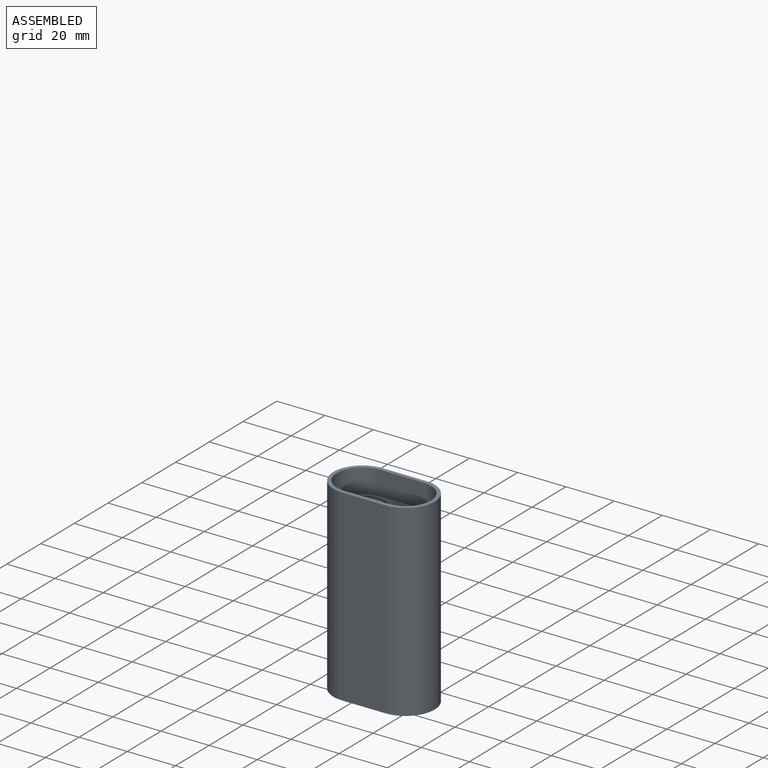
[diagram: assembled view]
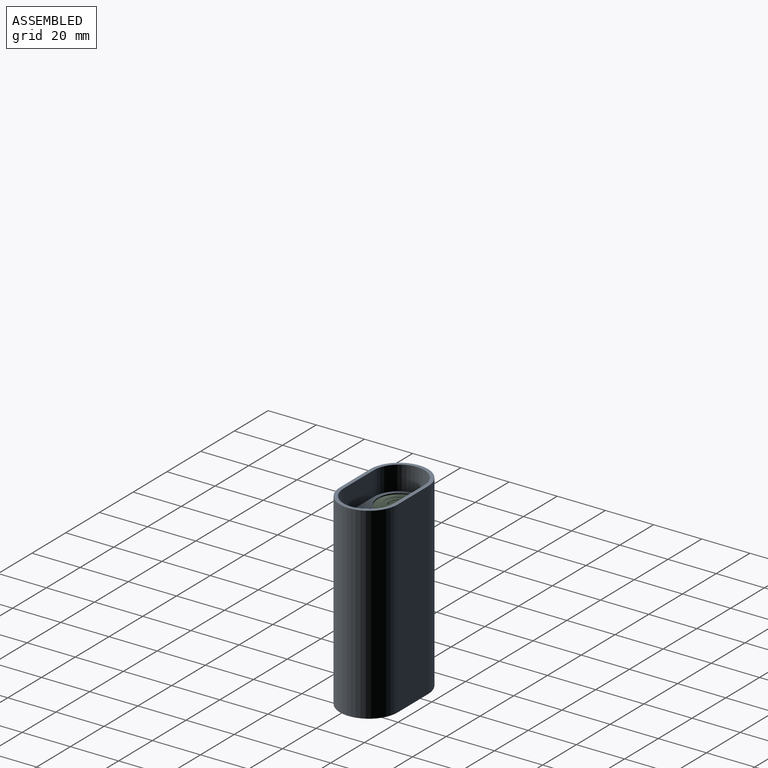
[diagram: assembled view, second angle]
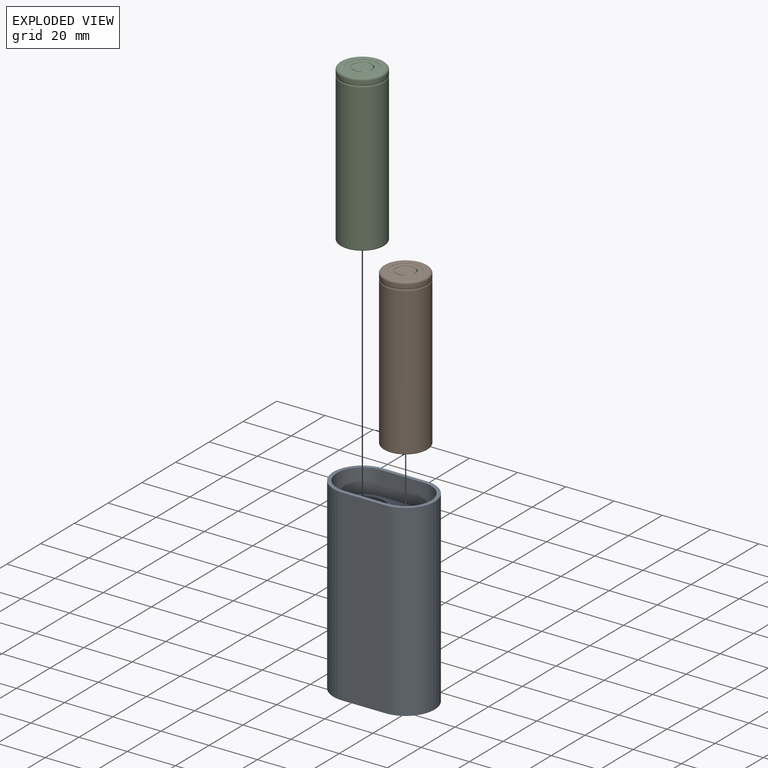
[diagram: exploded view]
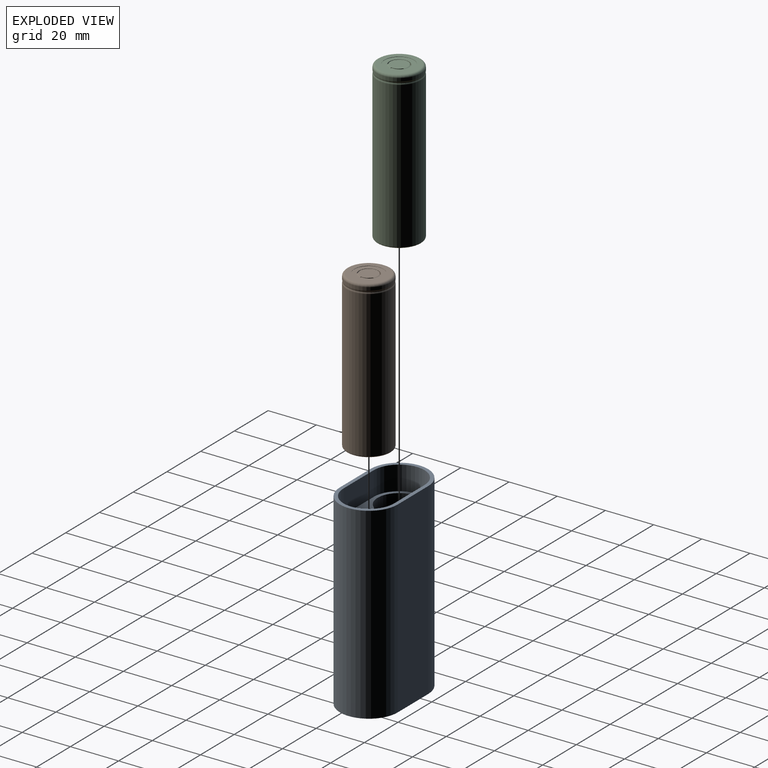
[diagram: exploded view, second angle]
ASSEMBLY  parts=3 mates=2
PART A: 25 faces, bbox 42x24x78 mm
  f0: plane 39x21mm, normal (0,0,1), area 205.1mm2, adj f2,f3,f4,f5,f6,f7,f8,f9
  f1: plane 36x18mm, normal (0,0,1), area 329.1mm2, adj f2,f3,f4,f5,f6,f7,f8,f9
  f2: plane 65x1.03mm, normal (0,1,0), area 66.9mm2, adj f0,f1,f6,f8
  f3: cylinder r=9mm len=65mm, axis (0,0,-1), area 2868.6mm2, adj f0,f1,f6,f7
  f4: plane 65x1.03mm, normal (0,-1,0), area 66.9mm2, adj f0,f1,f7,f9
  f5: cylinder r=9mm len=65mm, axis (0,0,-1), area 2868.6mm2, adj f0,f1,f8,f9
  f6: cylinder r=2mm len=65mm, axis (0,0,-1), area 114.5mm2, adj f0,f1,f2,f3
  f7: cylinder r=2mm len=65mm, axis (0,0,-1), area 114.5mm2, adj f0,f1,f3,f4
  f8: cylinder r=2mm len=65mm, axis (0,0,-1), area 114.5mm2, adj f0,f1,f2,f5
  f9: cylinder r=2mm len=65mm, axis (0,0,-1), area 114.5mm2, adj f0,f1,f4,f5
  f10: cylinder r=5mm len=10mm, axis (0,0,1), area 27.3mm2, adj f1,f11,f13,f14
  f11: plane 8.84x1mm, normal (0,1,0), area 8.8mm2, adj f1,f10,f12,f14
  f12: cylinder r=5mm len=10mm, axis (0,0,1), area 27.3mm2, adj f1,f11,f13,f14
  f13: plane 8.84x1mm, normal (0,-1,0), area 8.8mm2, adj f1,f10,f12,f14
  f14: plane 28x10mm, normal (0,0,1), area 190.2mm2, adj f10,f11,f12,f13
  f15: cylinder r=10.5mm len=21mm, axis (0,0,-1), area 329.9mm2, adj f0,f16,f18,f19
  f16: plane 18x10mm, normal (0,-1,0), area 180mm2, adj f0,f15,f17,f19
  f17: cylinder r=10.5mm len=21mm, axis (0,0,-1), area 329.9mm2, adj f0,f16,f18,f19
  f18: plane 18x10mm, normal (0,1,0), area 180mm2, adj f0,f15,f17,f19
  f19: plane 42x24mm, normal (0,0,1), area 160mm2, adj f15,f16,f17,f18,f21,f22,f23,f24
  f20: plane 42x24mm, normal (0,0,-1), area 884.4mm2, adj f21,f22,f23,f24
  f21: cylinder r=12mm len=78mm, axis (0,0,-1), area 2940.5mm2, adj f19,f20,f22,f24
  f22: plane 78x18mm, normal (0,-1,0), area 1404mm2, adj f19,f20,f21,f23
  f23: cylinder r=12mm len=78mm, axis (0,0,-1), area 2940.5mm2, adj f19,f20,f22,f24
  f24: plane 78x18mm, normal (0,1,0), area 1404mm2, adj f19,f20,f21,f23
PART B: 51 faces, bbox 19.9x65.1x19.9 mm
  f0: torus R=9.56mm, axis (0,-1,0), area 29.8mm2, adj f3,f4
  f1: torus R=8.6mm, axis (0,-1,0), area 44mm2, adj f12,f25
  f2: torus R=8.1mm, axis (0,1,0), area 86.2mm2, adj f13,f31
  f3: torus R=8.1mm, axis (0,1,0), area 24.8mm2, adj f0,f13
  f4: torus R=8.1mm, axis (0,1,0), area 24.8mm2, adj f0,f12
  f5: torus R=3.58mm, axis (0,-1,0), area 0.7mm2, adj f15,f26,f46,f47
  f6: cylinder r=3.7mm len=3.88mm, axis (0,1,0), area 0.8mm2, adj f21,f26,f41,f42
  f7: cylinder r=6.1mm len=12.2mm, axis (0,-1,0), area 3.8mm2, adj f30,f31
  f8: cylinder r=4.1mm len=8.2mm, axis (0,-1,0), area 2.3mm2, adj f29,f30
  f9: cylinder r=4.11mm len=8.22mm, axis (0,-1,0), area 0.3mm2, adj f28,f29
  f10: sphere r=217.85mm, area 136.9mm2, adj f11
  f11: cylinder r=6.6mm len=13.2mm, axis (0,-1,0), area 4.1mm2, adj f10,f25
  f12: cylinder r=9.1mm len=60.82mm, axis (0,-1,0), area 3477.6mm2, adj f1,f4
  f13: cylinder r=9.1mm len=18.2mm, axis (0,-1,0), area 69.9mm2, adj f2,f3
  f14: cylinder r=4.1mm len=8.2mm, axis (0,-1,0), area 21.1mm2, adj f16,f17,f19,f20,f22,f23,f28,f33
  f15: cone r=3.7mm half-angle=63.4deg, axis (0,-1,0), area 1.1mm2, adj f5,f23,f28,f34,f38,f39
  f16: cone r=3.7mm half-angle=63.4deg, axis (0,-1,0), area 1.5mm2, adj f14,f21,f23,f34,f38,f39
  f17: cone r=3.7mm half-angle=63.4deg, axis (0,-1,0), area 1.5mm2, adj f14,f21,f33,f36,f40,f41
  f18: cone r=3.7mm half-angle=63.4deg, axis (0,-1,0), area 1.1mm2, adj f28,f33,f36,f40,f41,f44
  f19: plane 8.2x8.2mm, normal (0,1,0), area 52.8mm2, adj f14
  f20: cone r=3.7mm half-angle=63.4deg, axis (0,-1,0), area 1.5mm2, adj f14,f21,f22,f35,f37,f42
  f21: plane 7.4x7.4mm, normal (0,-1,0), area 43mm2, adj f6,f16,f17,f20,f24,f32
  f22: plane 0.26x0.11mm, normal (0,0,-1), area 0mm2, adj f14,f20,f27,f37
  f23: plane 0.26x0.11mm, normal (-0.95,0,0.31), area 0mm2, adj f14,f15,f16,f38
  f24: cylinder r=3.7mm len=3.15mm, axis (0,1,0), area 0.8mm2, adj f21,f26,f37,f38
  f25: plane 17.2x17.2mm, normal (0,-1,0), area 95.5mm2, adj f1,f11
  f26: plane 7.56x7.45mm, normal (0,1,0), area 41.8mm2, adj f5,f6,f24,f32,f43,f44,f45,f46
  f27: cone r=3.7mm half-angle=63.4deg, axis (0,-1,0), area 1.1mm2, adj f22,f28,f35,f37,f42,f49
  f28: plane 8.22x8.22mm, normal (0,1,0), area 0.3mm2, adj f9,f14,f15,f18,f27
  f29: plane 8.22x8.22mm, normal (0,-1,0), area 0.3mm2, adj f8,f9
  f30: plane 12.2x12.2mm, normal (0,1,0), area 64.1mm2, adj f7,f8
  f31: plane 16.2x16.2mm, normal (0,1,0), area 89.2mm2, adj f2,f7
  f32: cylinder r=3.7mm len=3.56mm, axis (0,1,0), area 0.8mm2, adj f21,f26,f39,f40
  f33: plane 0.26x0.11mm, normal (0.21,0,-0.98), area 0mm2, adj f14,f17,f18,f40
  f34: plane 0.26x0.1mm, normal (0.87,0,0.5), area 0mm2, adj f14,f15,f16,f39
  f35: plane 0.26x0.08mm, normal (0.74,0,0.67), area 0mm2, adj f14,f20,f27,f42
  f36: plane 0.26x0.1mm, normal (-0.87,0,0.5), area 0mm2, adj f14,f17,f18,f41
  f37: cylinder r=0.3mm len=0.34mm, axis (0,1,0), area 0.1mm2, adj f20,f22,f24,f27,f48
  f38: cylinder r=0.3mm len=0.37mm, axis (0,1,0), area 0.1mm2, adj f15,f16,f23,f24,f47
  f39: cylinder r=0.3mm len=0.4mm, axis (0,1,0), area 0.1mm2, adj f15,f16,f32,f34,f46
  f40: cylinder r=0.3mm len=0.34mm, axis (0,1,0), area 0.1mm2, adj f17,f18,f32,f33,f45
  f41: cylinder r=0.3mm len=0.39mm, axis (0,1,0), area 0.1mm2, adj f6,f17,f18,f36,f43
  f42: cylinder r=0.3mm len=0.41mm, axis (0,1,0), area 0.1mm2, adj f6,f20,f27,f35,f50
  f43: bspline ~0.25x0.2mm, area 0mm2, adj f26,f41,f44
  f44: torus R=3.58mm, axis (0,-1,0), area 0.7mm2, adj f18,f26,f43,f45
  f45: bspline ~0.23x0.22mm, area 0mm2, adj f26,f40,f44
  f46: bspline ~0.24x0.24mm, area 0mm2, adj f5,f26,f39
  f47: bspline ~0.24x0.23mm, area 0mm2, adj f5,f26,f38
  f48: bspline ~0.22x0.22mm, area 0mm2, adj f26,f37,f49
  f49: torus R=3.58mm, axis (0,-1,0), area 0.7mm2, adj f26,f27,f48,f50
  f50: bspline ~0.24x0.23mm, area 0mm2, adj f26,f42,f49
PART C: same geometry as B
PLACE A t=(-43.98,-14.92,-39.02)mm
PLACE B rot(axis=(1,0,0),90deg) t=(-43.98,-14.92,-39.02)mm
PLACE C rot(axis=(1,0,0),90deg) t=(-61.98,-14.92,-39.02)mm
MATE fastened C.f0 <-> A.f3  axis (0,0,-1) through (-61.98,-14.92,-39.02)mm
MATE fastened B.f0 <-> A.f5  axis (0,0,-1) through (-43.98,-14.92,-39.02)mm
